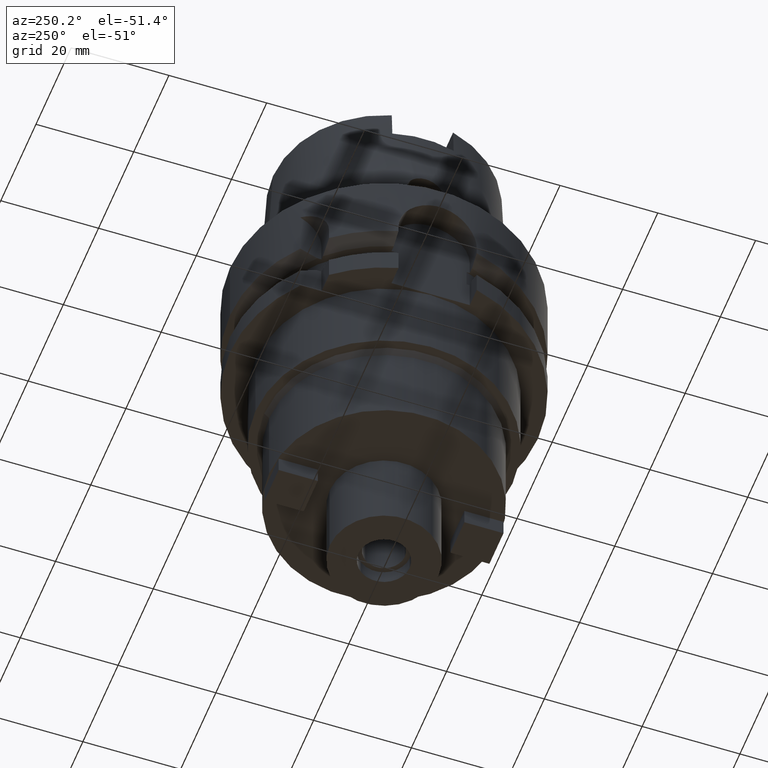
[diagram: clean part render]
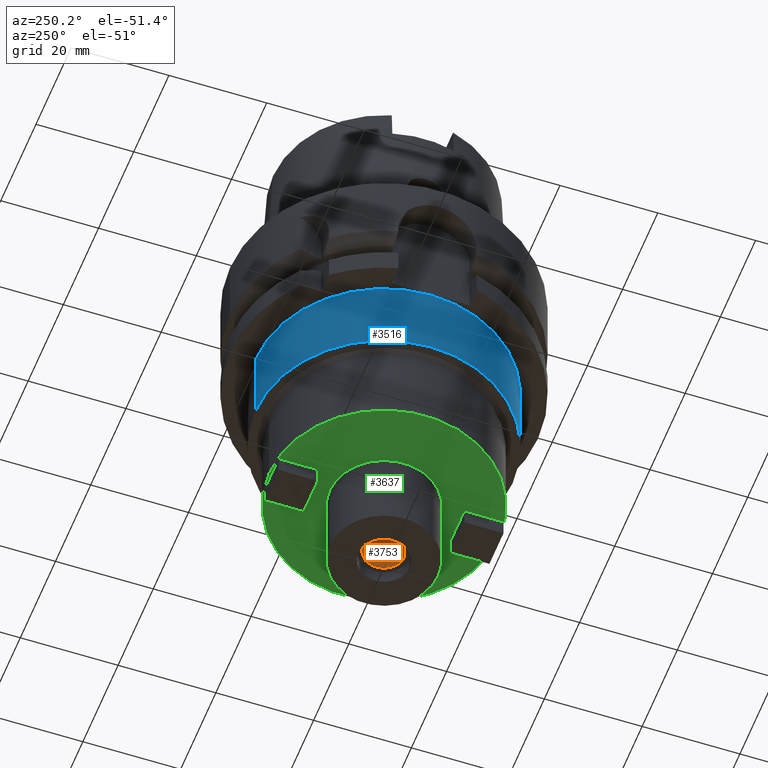
[diagram: same view with three faces highlighted in distinct colors, each labeled with its STEP entity id]
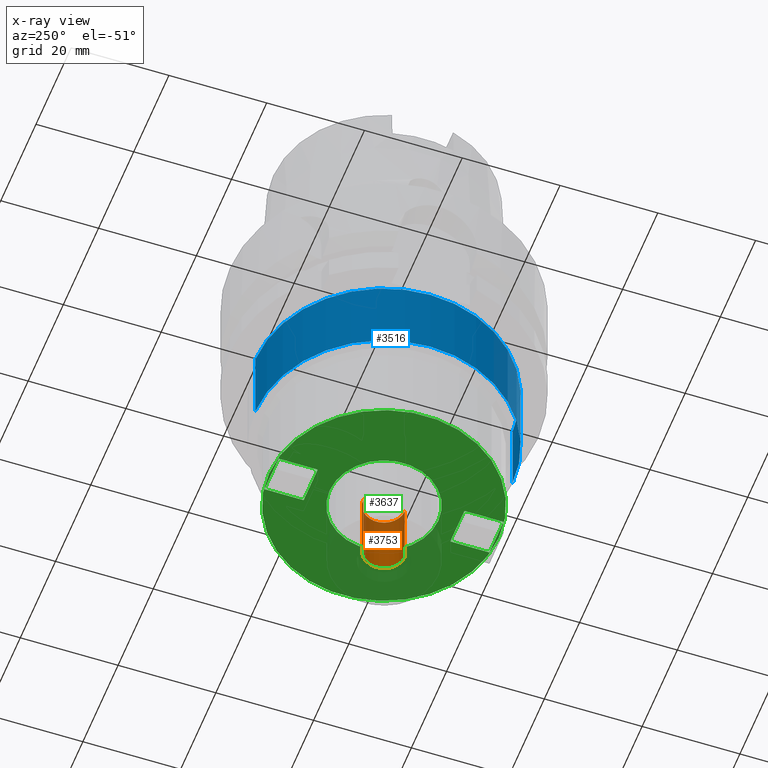
[diagram: x-ray of the same camera — body ghosted, the three highlighted faces saturated]
A machine part, auxiliary view with three faces highlighted in distinct colors.
The next image is the same camera in x-ray (body ghosted, the three faces saturated) — at least one of them is partly hidden behind the body in this view.
Their STEP definitions:

[orange] entity #3753 — the highlighted cylindrical surface (edge-blend (fillet) strip) has radius 4.25 mm, axis along (0, 0, -1).
#1792=CARTESIAN_POINT('',(0.E0,1.683277025428E-14,-7.4E1));
#1793=DIRECTION('',(0.E0,0.E0,-1.E0));
#1794=DIRECTION('',(0.E0,1.E0,0.E0));
#1795=AXIS2_PLACEMENT_3D('',#1792,#1793,#1794);
#1800=DIRECTION('',(0.E0,0.E0,1.E0));
#1801=VECTOR('',#1800,1.4E1);
#1802=CARTESIAN_POINT('',(0.E0,-4.25E0,-7.4E1));
#1803=LINE('',#1802,#1801);
#1815=DIRECTION('',(0.E0,0.E0,1.E0));
#1816=VECTOR('',#1815,1.4E1);
#1817=CARTESIAN_POINT('',(0.E0,4.25E0,-7.4E1));
#1818=LINE('',#1817,#1816);
#1829=CARTESIAN_POINT('',(0.E0,1.683277025428E-14,-6.E1));
#1830=DIRECTION('',(0.E0,0.E0,1.E0));
#1831=DIRECTION('',(0.E0,-1.E0,0.E0));
#1832=AXIS2_PLACEMENT_3D('',#1829,#1830,#1831);
#2345=CARTESIAN_POINT('',(0.E0,-4.25E0,-7.4E1));
#2346=CARTESIAN_POINT('',(0.E0,4.25E0,-7.4E1));
#2347=VERTEX_POINT('',#2345);
#2348=VERTEX_POINT('',#2346);
#2349=CARTESIAN_POINT('',(0.E0,4.25E0,-6.E1));
#2350=VERTEX_POINT('',#2349);
#2351=CARTESIAN_POINT('',(0.E0,-4.25E0,-6.E1));
#2352=VERTEX_POINT('',#2351);
#3741=CARTESIAN_POINT('',(0.E0,1.683277025428E-14,3.745E1));
#3742=DIRECTION('',(0.E0,0.E0,-1.E0));
#3743=DIRECTION('',(0.E0,-1.E0,0.E0));
#3744=AXIS2_PLACEMENT_3D('',#3741,#3742,#3743);
#3745=CYLINDRICAL_SURFACE('',#3744,4.25E0);
#3746=ORIENTED_EDGE('',*,*,#3731,.T.);
#3748=ORIENTED_EDGE('',*,*,#3747,.F.);
#3749=ORIENTED_EDGE('',*,*,#3734,.F.);
#3750=ORIENTED_EDGE('',*,*,#3721,.F.);
#3751=EDGE_LOOP('',(#3746,#3748,#3749,#3750));
#3752=FACE_OUTER_BOUND('',#3751,.F.);
#1796=CIRCLE('',#1795,4.25E0);
#1833=CIRCLE('',#1832,4.25E0);
#3721=EDGE_CURVE('',#2348,#2347,#1796,.T.);
#3731=EDGE_CURVE('',#2348,#2350,#1818,.T.);
#3734=EDGE_CURVE('',#2347,#2352,#1803,.T.);
#3747=EDGE_CURVE('',#2352,#2350,#1833,.T.);
#3753=ADVANCED_FACE('',(#3752),#3745,.F.);

[blue] entity #3516 — the highlighted cylindrical surface (partial cylindrical patch) has radius 26.3 mm, axis along (0, 0, -1).
#1017=CARTESIAN_POINT('',(0.E0,1.683277025428E-14,-2.6E1));
#1018=DIRECTION('',(0.E0,0.E0,-1.E0));
#1019=DIRECTION('',(0.E0,-1.E0,0.E0));
#1020=AXIS2_PLACEMENT_3D('',#1017,#1018,#1019);
#1558=DIRECTION('',(0.E0,0.E0,-1.E0));
#1559=VECTOR('',#1558,1.6E1);
#1560=CARTESIAN_POINT('',(0.E0,-2.63E1,-2.6E1));
#1561=LINE('',#1560,#1559);
#1565=DIRECTION('',(0.E0,0.E0,-1.E0));
#1566=VECTOR('',#1565,1.6E1);
#1567=CARTESIAN_POINT('',(0.E0,2.63E1,-2.6E1));
#1568=LINE('',#1567,#1566);
#1580=CARTESIAN_POINT('',(0.E0,1.683277025428E-14,-4.2E1));
#1581=DIRECTION('',(0.E0,0.E0,1.E0));
#1582=DIRECTION('',(0.E0,1.E0,0.E0));
#1583=AXIS2_PLACEMENT_3D('',#1580,#1581,#1582);
#2293=CARTESIAN_POINT('',(0.E0,-2.63E1,-2.6E1));
#2294=CARTESIAN_POINT('',(0.E0,2.63E1,-2.6E1));
#2295=VERTEX_POINT('',#2293);
#2296=VERTEX_POINT('',#2294);
#2297=CARTESIAN_POINT('',(0.E0,2.63E1,-4.2E1));
#2298=VERTEX_POINT('',#2297);
#2299=CARTESIAN_POINT('',(0.E0,-2.63E1,-4.2E1));
#2300=VERTEX_POINT('',#2299);
#3502=CARTESIAN_POINT('',(0.E0,1.683277025428E-14,3.745E1));
#3503=DIRECTION('',(0.E0,0.E0,-1.E0));
#3504=DIRECTION('',(0.E0,-1.E0,0.E0));
#3505=AXIS2_PLACEMENT_3D('',#3502,#3503,#3504);
#3506=CYLINDRICAL_SURFACE('',#3505,2.63E1);
#3508=ORIENTED_EDGE('',*,*,#3507,.F.);
#3509=ORIENTED_EDGE('',*,*,#3118,.F.);
#3511=ORIENTED_EDGE('',*,*,#3510,.T.);
#3513=ORIENTED_EDGE('',*,*,#3512,.F.);
#3514=EDGE_LOOP('',(#3508,#3509,#3511,#3513));
#3515=FACE_OUTER_BOUND('',#3514,.F.);
#1021=CIRCLE('',#1020,2.63E1);
#1584=CIRCLE('',#1583,2.63E1);
#3118=EDGE_CURVE('',#2295,#2296,#1021,.T.);
#3507=EDGE_CURVE('',#2296,#2298,#1568,.T.);
#3510=EDGE_CURVE('',#2295,#2300,#1561,.T.);
#3512=EDGE_CURVE('',#2298,#2300,#1584,.T.);
#3516=ADVANCED_FACE('',(#3515),#3506,.T.);

[green] entity #3637 — the highlighted planar face has unit normal (0, 0, -1).
#1648=CARTESIAN_POINT('',(0.E0,1.683277025428E-14,-6.E1));
#1649=DIRECTION('',(0.E0,0.E0,1.E0));
#1650=DIRECTION('',(0.E0,-1.E0,0.E0));
#1651=AXIS2_PLACEMENT_3D('',#1648,#1649,#1650);
#1656=CARTESIAN_POINT('',(0.E0,1.683277025428E-14,-6.E1));
#1657=DIRECTION('',(0.E0,0.E0,1.E0));
#1658=DIRECTION('',(0.E0,1.E0,0.E0));
#1659=AXIS2_PLACEMENT_3D('',#1656,#1657,#1658);
#1664=CARTESIAN_POINT('',(0.E0,1.683277025428E-14,-6.E1));
#1665=DIRECTION('',(0.E0,0.E0,-1.E0));
#1666=DIRECTION('',(0.E0,-1.E0,0.E0));
#1667=AXIS2_PLACEMENT_3D('',#1664,#1665,#1666);
#1672=CARTESIAN_POINT('',(0.E0,1.683277025428E-14,-6.E1));
#1673=DIRECTION('',(0.E0,0.E0,-1.E0));
#1674=DIRECTION('',(0.E0,1.E0,0.E0));
#1675=AXIS2_PLACEMENT_3D('',#1672,#1673,#1674);
#1680=DIRECTION('',(0.E0,1.E0,0.E0));
#1681=VECTOR('',#1680,8.E0);
#1682=CARTESIAN_POINT('',(-4.E0,1.5E1,-6.E1));
#1683=LINE('',#1682,#1681);
#1687=DIRECTION('',(-1.E0,0.E0,0.E0));
#1688=VECTOR('',#1687,8.E0);
#1689=CARTESIAN_POINT('',(4.E0,1.5E1,-6.E1));
#1690=LINE('',#1689,#1688);
#1694=DIRECTION('',(0.E0,-1.E0,0.E0));
#1695=VECTOR('',#1694,8.E0);
#1696=CARTESIAN_POINT('',(4.E0,-1.5E1,-6.E1));
#1697=LINE('',#1696,#1695);
#1701=DIRECTION('',(1.E0,0.E0,0.E0));
#1702=VECTOR('',#1701,8.E0);
#1703=CARTESIAN_POINT('',(-4.E0,-1.5E1,-6.E1));
#1704=LINE('',#1703,#1702);
#2026=DIRECTION('',(0.E0,1.E0,0.E0));
#2027=VECTOR('',#2026,8.E0);
#2028=CARTESIAN_POINT('',(4.E0,1.5E1,-6.E1));
#2029=LINE('',#2028,#2027);
#2054=DIRECTION('',(-1.E0,0.E0,0.E0));
#2055=VECTOR('',#2054,8.E0);
#2056=CARTESIAN_POINT('',(4.E0,2.3E1,-6.E1));
#2057=LINE('',#2056,#2055);
#2096=DIRECTION('',(0.E0,-1.E0,0.E0));
#2097=VECTOR('',#2096,8.E0);
#2098=CARTESIAN_POINT('',(-4.E0,-1.5E1,-6.E1));
#2099=LINE('',#2098,#2097);
#2124=DIRECTION('',(1.E0,0.E0,0.E0));
#2125=VECTOR('',#2124,8.E0);
#2126=CARTESIAN_POINT('',(-4.E0,-2.3E1,-6.E1));
#2127=LINE('',#2126,#2125);
#2309=CARTESIAN_POINT('',(0.E0,2.35E1,-6.E1));
#2310=VERTEX_POINT('',#2309);
#2311=CARTESIAN_POINT('',(0.E0,-2.35E1,-6.E1));
#2312=VERTEX_POINT('',#2311);
#2313=CARTESIAN_POINT('',(0.E0,-1.11125E1,-6.E1));
#2314=CARTESIAN_POINT('',(0.E0,1.11125E1,-6.E1));
#2315=VERTEX_POINT('',#2313);
#2316=VERTEX_POINT('',#2314);
#2317=CARTESIAN_POINT('',(-4.E0,1.5E1,-6.E1));
#2318=CARTESIAN_POINT('',(-4.E0,2.3E1,-6.E1));
#2319=VERTEX_POINT('',#2317);
#2320=VERTEX_POINT('',#2318);
#2321=CARTESIAN_POINT('',(4.E0,2.3E1,-6.E1));
#2322=VERTEX_POINT('',#2321);
#2323=CARTESIAN_POINT('',(4.E0,1.5E1,-6.E1));
#2324=VERTEX_POINT('',#2323);
#2325=CARTESIAN_POINT('',(4.E0,-1.5E1,-6.E1));
#2326=CARTESIAN_POINT('',(4.E0,-2.3E1,-6.E1));
#2327=VERTEX_POINT('',#2325);
#2328=VERTEX_POINT('',#2326);
#2329=CARTESIAN_POINT('',(-4.E0,-2.3E1,-6.E1));
#2330=VERTEX_POINT('',#2329);
#2331=CARTESIAN_POINT('',(-4.E0,-1.5E1,-6.E1));
#2332=VERTEX_POINT('',#2331);
#3602=CARTESIAN_POINT('',(0.E0,0.E0,-6.E1));
#3603=DIRECTION('',(0.E0,0.E0,-1.E0));
#3604=DIRECTION('',(0.E0,-1.E0,0.E0));
#3605=AXIS2_PLACEMENT_3D('',#3602,#3603,#3604);
#3606=PLANE('',#3605);
#3607=ORIENTED_EDGE('',*,*,#3581,.T.);
#3608=ORIENTED_EDGE('',*,*,#3597,.T.);
#3609=EDGE_LOOP('',(#3607,#3608));
#3610=FACE_OUTER_BOUND('',#3609,.F.);
#3612=ORIENTED_EDGE('',*,*,#3611,.T.);
#3614=ORIENTED_EDGE('',*,*,#3613,.T.);
#3615=EDGE_LOOP('',(#3612,#3614));
#3616=FACE_BOUND('',#3615,.F.);
#3618=ORIENTED_EDGE('',*,*,#3617,.T.);
#3620=ORIENTED_EDGE('',*,*,#3619,.F.);
#3622=ORIENTED_EDGE('',*,*,#3621,.F.);
#3624=ORIENTED_EDGE('',*,*,#3623,.T.);
#3625=EDGE_LOOP('',(#3618,#3620,#3622,#3624));
#3626=FACE_BOUND('',#3625,.F.);
#3628=ORIENTED_EDGE('',*,*,#3627,.T.);
#3630=ORIENTED_EDGE('',*,*,#3629,.F.);
#3632=ORIENTED_EDGE('',*,*,#3631,.F.);
#3634=ORIENTED_EDGE('',*,*,#3633,.T.);
#3635=EDGE_LOOP('',(#3628,#3630,#3632,#3634));
#3636=FACE_BOUND('',#3635,.F.);
#1652=CIRCLE('',#1651,2.35E1);
#1660=CIRCLE('',#1659,2.35E1);
#1668=CIRCLE('',#1667,1.11125E1);
#1676=CIRCLE('',#1675,1.11125E1);
#3581=EDGE_CURVE('',#2312,#2310,#1652,.T.);
#3597=EDGE_CURVE('',#2310,#2312,#1660,.T.);
#3611=EDGE_CURVE('',#2315,#2316,#1668,.T.);
#3613=EDGE_CURVE('',#2316,#2315,#1676,.T.);
#3617=EDGE_CURVE('',#2319,#2320,#1683,.T.);
#3619=EDGE_CURVE('',#2322,#2320,#2057,.T.);
#3621=EDGE_CURVE('',#2324,#2322,#2029,.T.);
#3623=EDGE_CURVE('',#2324,#2319,#1690,.T.);
#3627=EDGE_CURVE('',#2327,#2328,#1697,.T.);
#3629=EDGE_CURVE('',#2330,#2328,#2127,.T.);
#3631=EDGE_CURVE('',#2332,#2330,#2099,.T.);
#3633=EDGE_CURVE('',#2332,#2327,#1704,.T.);
#3637=ADVANCED_FACE('',(#3610,#3616,#3626,#3636),#3606,.T.);